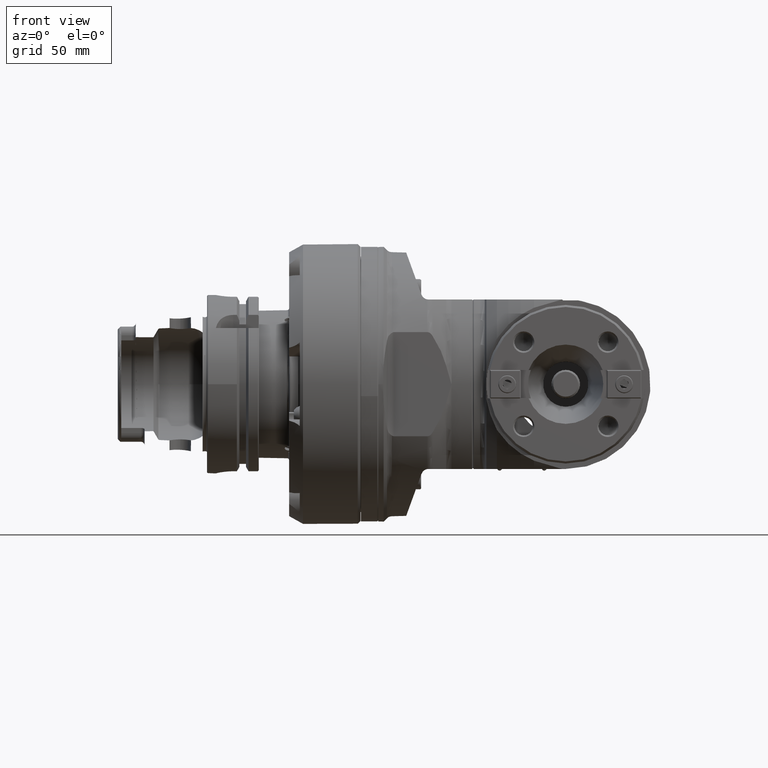
[diagram: clean part render]
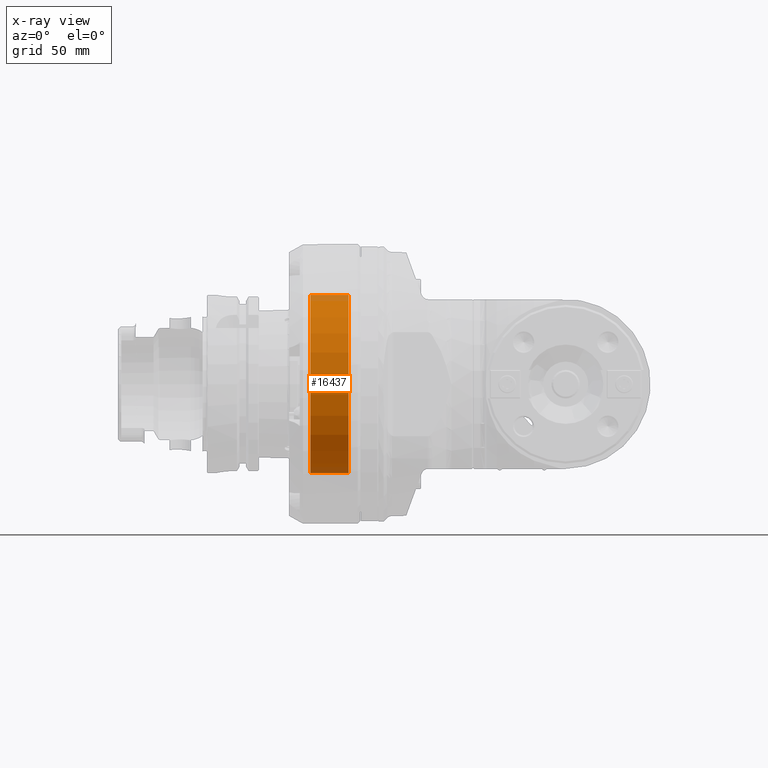
[diagram: x-ray — body ghosted, one internal face saturated and labeled with its STEP entity id]
A machine part, front view, then the same camera in x-ray: the body is ghosted and one INTERNAL B-rep face — a face not visible from any outside direction — is saturated and labeled: STEP entity #16437.
In plain terms, the highlighted cylindrical surface (bore or boss wall) has radius 50 mm, axis along (1, -0, 0).
Its self-contained STEP definition (entity closure, byte-faithful):
#1418=FACE_OUTER_BOUND('',#2370,.T.);
#2370=EDGE_LOOP('',(#11656,#11657,#11658,#11659,#11660,#11661,#11662,#11663,
#11664));
#3365=LINE('',#24105,#4672);
#3414=LINE('',#24487,#4721);
#3512=LINE('',#24931,#4819);
#4672=VECTOR('',#19254,5.5);
#4721=VECTOR('',#19497,5.5);
#4819=VECTOR('',#19865,50.);
#5985=CIRCLE('',#17420,50.);
#6119=CIRCLE('',#17646,50.);
#6120=CIRCLE('',#17647,50.);
#6121=CIRCLE('',#17649,50.);
#6122=CIRCLE('',#17650,50.);
#6805=VERTEX_POINT('',#24089);
#6812=VERTEX_POINT('',#24103);
#6813=VERTEX_POINT('',#24107);
#6890=VERTEX_POINT('',#24486);
#7013=VERTEX_POINT('',#24922);
#7014=VERTEX_POINT('',#24923);
#7015=VERTEX_POINT('',#24928);
#8538=EDGE_CURVE('',#6805,#6812,#3365,.T.);
#8539=EDGE_CURVE('',#6805,#6813,#5985,.T.);
#8661=EDGE_CURVE('',#6890,#6813,#3414,.T.);
#8845=EDGE_CURVE('',#7013,#7014,#6119,.T.);
#8847=EDGE_CURVE('',#7014,#7013,#6120,.T.);
#8848=EDGE_CURVE('',#6890,#7015,#6121,.T.);
#8849=EDGE_CURVE('',#7015,#6812,#6122,.T.);
#8850=EDGE_CURVE('',#7015,#7013,#3512,.T.);
#11656=ORIENTED_EDGE('',*,*,#8848,.F.);
#11657=ORIENTED_EDGE('',*,*,#8661,.T.);
#11658=ORIENTED_EDGE('',*,*,#8539,.F.);
#11659=ORIENTED_EDGE('',*,*,#8538,.T.);
#11660=ORIENTED_EDGE('',*,*,#8849,.F.);
#11661=ORIENTED_EDGE('',*,*,#8850,.T.);
#11662=ORIENTED_EDGE('',*,*,#8847,.F.);
#11663=ORIENTED_EDGE('',*,*,#8845,.F.);
#11664=ORIENTED_EDGE('',*,*,#8850,.F.);
#16126=CYLINDRICAL_SURFACE('',#17648,50.);
#16437=ADVANCED_FACE('',(#1418),#16126,.F.);
#17420=AXIS2_PLACEMENT_3D('',#24108,#19257,#19258);
#17646=AXIS2_PLACEMENT_3D('',#24924,#19854,#19855);
#17647=AXIS2_PLACEMENT_3D('',#24926,#19857,#19858);
#17648=AXIS2_PLACEMENT_3D('',#24927,#19859,#19860);
#17649=AXIS2_PLACEMENT_3D('',#24929,#19861,#19862);
#17650=AXIS2_PLACEMENT_3D('',#24930,#19863,#19864);
#19254=DIRECTION('',(-1.,0.,0.));
#19257=DIRECTION('center_axis',(1.,0.,0.));
#19258=DIRECTION('ref_axis',(0.,0.992773891679269,-0.119999999999996));
#19497=DIRECTION('',(1.,0.,0.));
#19854=DIRECTION('center_axis',(-1.,0.,0.));
#19855=DIRECTION('ref_axis',(0.,0.,1.));
#19857=DIRECTION('center_axis',(-1.,0.,0.));
#19858=DIRECTION('ref_axis',(0.,0.,1.));
#19859=DIRECTION('center_axis',(1.,0.,0.));
#19860=DIRECTION('ref_axis',(0.,0.,1.));
#19861=DIRECTION('center_axis',(1.,0.,0.));
#19862=DIRECTION('ref_axis',(0.,0.992773891679269,0.119999999999996));
#19863=DIRECTION('center_axis',(1.,0.,0.));
#19864=DIRECTION('ref_axis',(0.,0.992773891679269,0.119999999999996));
#19865=DIRECTION('',(1.,0.,0.));
#24089=CARTESIAN_POINT('',(11.5,49.63869458396,-6.));
#24103=CARTESIAN_POINT('',(6.,49.63869458396,-6.));
#24105=CARTESIAN_POINT('',(11.5,49.63869458396,-6.));
#24107=CARTESIAN_POINT('',(11.5,49.63869458396,6.));
#24108=CARTESIAN_POINT('Origin',(11.5,0.,0.));
#24486=CARTESIAN_POINT('',(6.,49.63869458396,6.));
#24487=CARTESIAN_POINT('',(6.,49.63869458396,6.));
#24922=CARTESIAN_POINT('',(27.26794919243,0.,-50.));
#24923=CARTESIAN_POINT('',(27.2679491924314,-6.12323399573647E-15,49.9999999999976));
#24924=CARTESIAN_POINT('Origin',(27.26794919243,0.,0.));
#24926=CARTESIAN_POINT('Origin',(27.26794919243,0.,0.));
#24927=CARTESIAN_POINT('Origin',(17.5,0.,0.));
#24928=CARTESIAN_POINT('',(6.,6.12323399573677E-15,-50.));
#24929=CARTESIAN_POINT('Origin',(6.,0.,0.));
#24930=CARTESIAN_POINT('Origin',(6.,0.,0.));
#24931=CARTESIAN_POINT('',(17.5,6.12323399573677E-15,-50.));